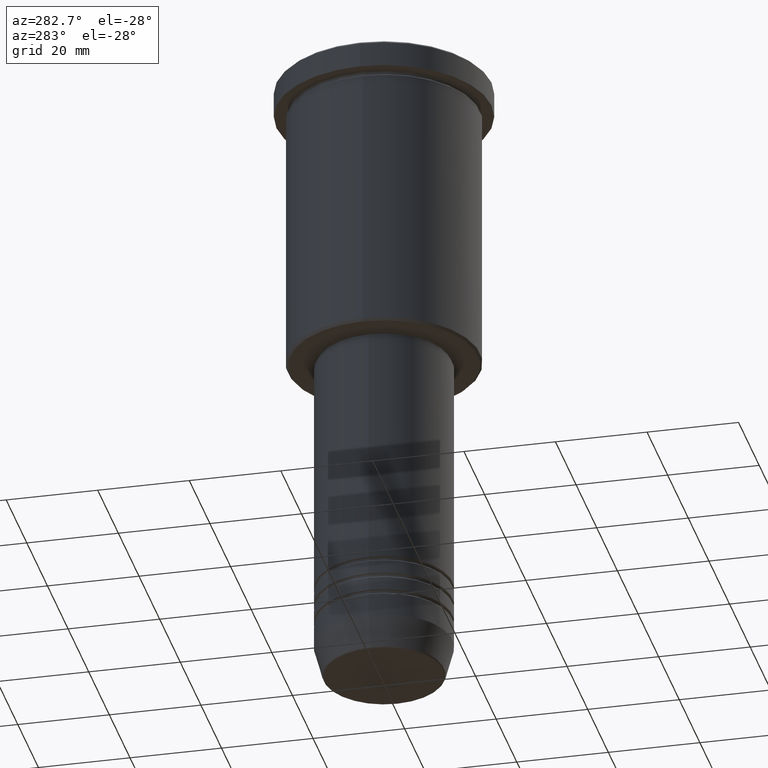
[diagram: clean part render]
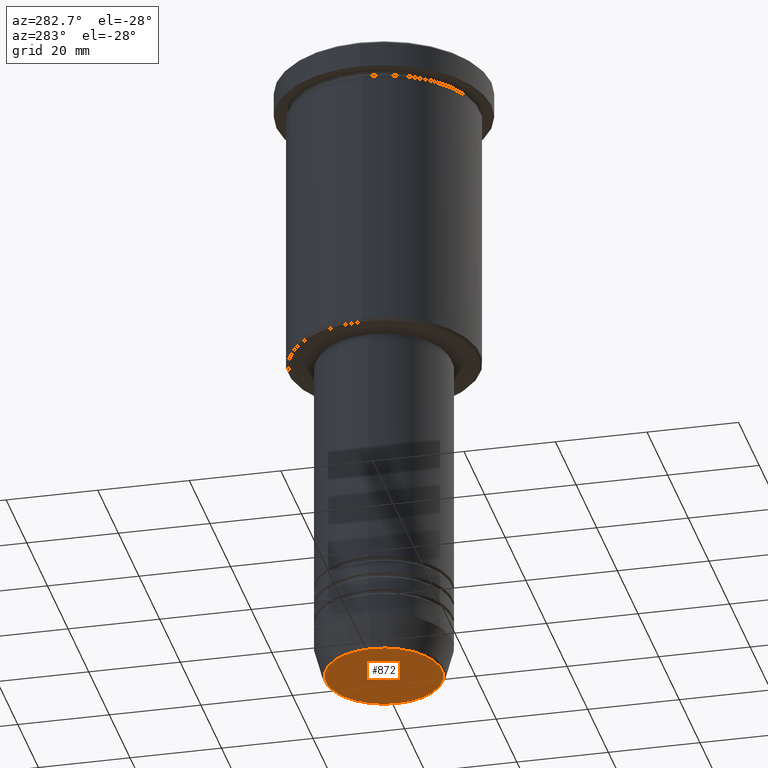
[diagram: same view with one face highlighted and labeled with its STEP entity id]
A machine part, auxiliary view. The second image highlights one B-rep face of the part: STEP entity #872.
In plain terms, the highlighted planar face has unit normal (0, -0, 1).
Its self-contained STEP definition (entity closure, byte-faithful):
#65 = CARTESIAN_POINT ( 'NONE',  ( 0.000000000000000000, 0.000000000000000000, -141.0000000000000000 ) ) ;
#68 = ORIENTED_EDGE ( 'NONE', *, *, #617, .T. ) ;
#143 = PLANE ( 'NONE',  #893 ) ;
#177 = DIRECTION ( 'NONE',  ( 0.000000000000000000, 0.000000000000000000, -1.000000000000000000 ) ) ;
#201 = DIRECTION ( 'NONE',  ( 1.000000000000000000, 0.000000000000000000, 0.000000000000000000 ) ) ;
#224 = DIRECTION ( 'NONE',  ( 0.000000000000000000, -0.000000000000000000, 1.000000000000000000 ) ) ;
#245 = FACE_OUTER_BOUND ( 'NONE', #391, .T. ) ;
#356 = VERTEX_POINT ( 'NONE', #845 ) ;
#359 = EDGE_CURVE ( 'NONE', #356, #1059, #970, .T. ) ;
#381 = CARTESIAN_POINT ( 'NONE',  ( 0.000000000000000000, 0.000000000000000000, -141.0000000000000000 ) ) ;
#391 = EDGE_LOOP ( 'NONE', ( #823, #68 ) ) ;
#436 = CARTESIAN_POINT ( 'NONE',  ( 0.000000000000000000, 0.000000000000000000, -141.0000000000000000 ) ) ;
#507 = CARTESIAN_POINT ( 'NONE',  ( -12.74069215899265828, 1.589857736427681035E-15, -141.0000000000000000 ) ) ;
#617 = EDGE_CURVE ( 'NONE', #1059, #356, #1109, .T. ) ;
#656 = DIRECTION ( 'NONE',  ( 0.000000000000000000, 0.000000000000000000, -1.000000000000000000 ) ) ;
#823 = ORIENTED_EDGE ( 'NONE', *, *, #359, .T. ) ;
#845 = CARTESIAN_POINT ( 'NONE',  ( 12.74069215899265828, 0.000000000000000000, -141.0000000000000000 ) ) ;
#872 = ADVANCED_FACE ( 'NONE', ( #245 ), #143, .F. ) ;
#891 = AXIS2_PLACEMENT_3D ( 'NONE', #65, #177, #995 ) ;
#893 = AXIS2_PLACEMENT_3D ( 'NONE', #436, #224, #1142 ) ;
#970 = CIRCLE ( 'NONE', #1147, 12.74069215899265828 ) ;
#995 = DIRECTION ( 'NONE',  ( 1.000000000000000000, 0.000000000000000000, 0.000000000000000000 ) ) ;
#1059 = VERTEX_POINT ( 'NONE', #507 ) ;
#1109 = CIRCLE ( 'NONE', #891, 12.74069215899265828 ) ;
#1142 = DIRECTION ( 'NONE',  ( 1.000000000000000000, 0.000000000000000000, 0.000000000000000000 ) ) ;
#1147 = AXIS2_PLACEMENT_3D ( 'NONE', #381, #656, #201 ) ;